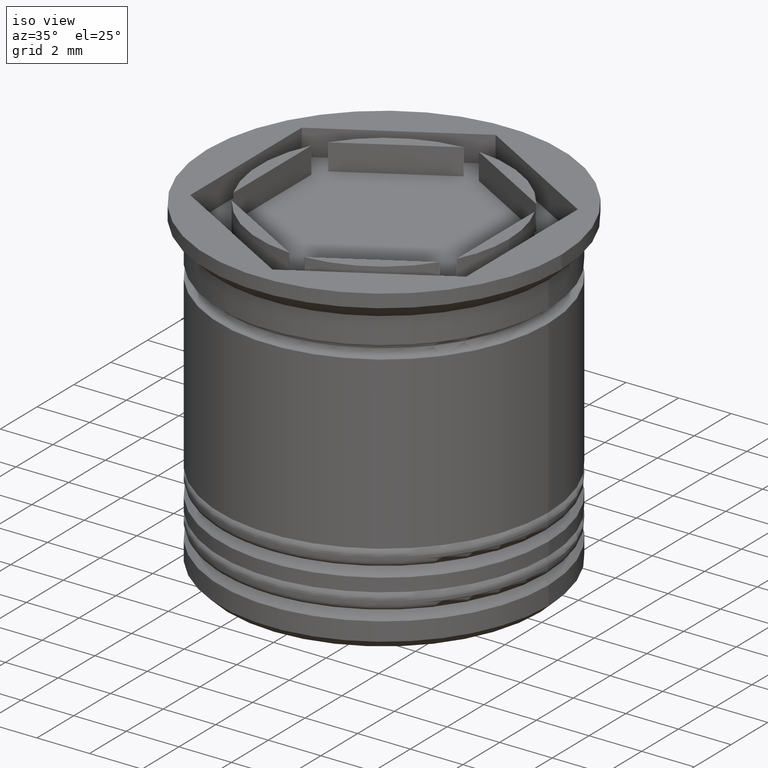
[diagram: clean part render]
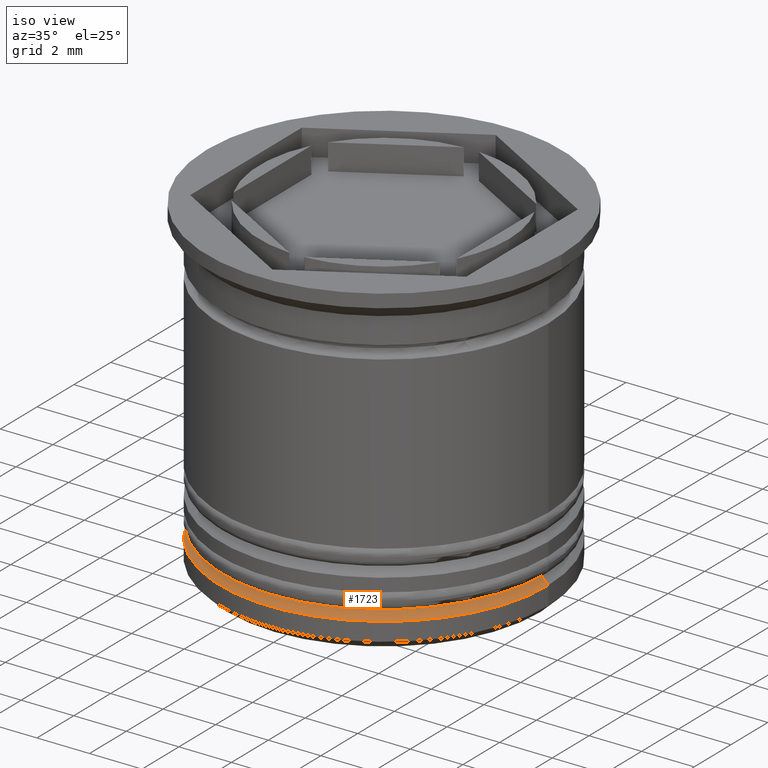
[diagram: same view with one face highlighted and labeled with its STEP entity id]
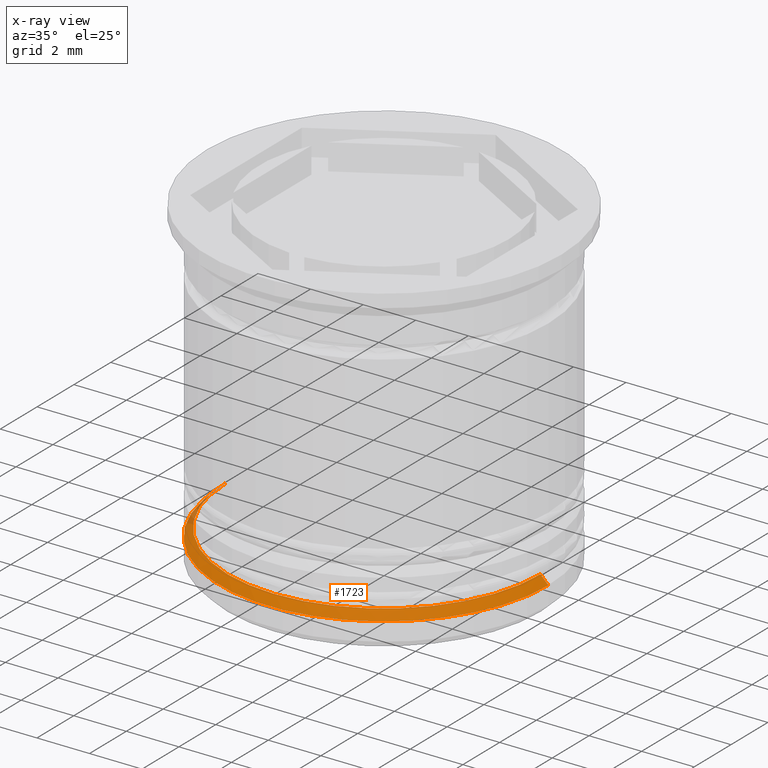
[diagram: x-ray of the same camera — body ghosted, the highlighted face saturated]
A machine part, iso view. The second image highlights one B-rep face of the part: STEP entity #1723.
The next image is the same camera in x-ray: the body ghosted, the highlighted face saturated — about 2% of this face is hidden behind the body in this view.
In plain terms, the highlighted conical surface has half-angle 45 deg.
Its self-contained STEP definition (entity closure, byte-faithful):
#25 = LINE ( 'NONE', #306, #613 ) ;
#48 = AXIS2_PLACEMENT_3D ( 'NONE', #1929, #1003, #1173 ) ;
#109 = FACE_OUTER_BOUND ( 'NONE', #617, .T. ) ;
#167 = ORIENTED_EDGE ( 'NONE', *, *, #1665, .F. ) ;
#208 = ORIENTED_EDGE ( 'NONE', *, *, #408, .F. ) ;
#257 = DIRECTION ( 'NONE',  ( -1.000000000000000000, 0.000000000000000000, 0.000000000000000000 ) ) ;
#306 = CARTESIAN_POINT ( 'NONE',  ( -5.749999999999991118, 0.000000000000000000, -11.00000000000000355 ) ) ;
#408 = EDGE_CURVE ( 'NONE', #816, #1882, #1508, .T. ) ;
#418 = AXIS2_PLACEMENT_3D ( 'NONE', #1655, #575, #443 ) ;
#443 = DIRECTION ( 'NONE',  ( -1.000000000000000000, 0.000000000000000000, 0.000000000000000000 ) ) ;
#461 = LINE ( 'NONE', #757, #1846 ) ;
#536 = VERTEX_POINT ( 'NONE', #943 ) ;
#575 = DIRECTION ( 'NONE',  ( 0.000000000000000000, 0.000000000000000000, -1.000000000000000000 ) ) ;
#613 = VECTOR ( 'NONE', #1210, 1000.000000000000000 ) ;
#617 = EDGE_LOOP ( 'NONE', ( #1146, #167, #1455, #208 ) ) ;
#713 = CIRCLE ( 'NONE', #48, 5.950000000000000178 ) ;
#752 = CONICAL_SURFACE ( 'NONE', #1676, 5.749999999999991118, 0.7853981633974533860 ) ;
#757 = CARTESIAN_POINT ( 'NONE',  ( 5.749999999999991118, 7.041719095097270033E-16, -11.00000000000000355 ) ) ;
#816 = VERTEX_POINT ( 'NONE', #1799 ) ;
#943 = CARTESIAN_POINT ( 'NONE',  ( 5.950000000000000178, 0.000000000000000000, -11.20000000000000995 ) ) ;
#1003 = DIRECTION ( 'NONE',  ( -0.000000000000000000, -0.000000000000000000, 1.000000000000000000 ) ) ;
#1004 = VERTEX_POINT ( 'NONE', #1405 ) ;
#1146 = ORIENTED_EDGE ( 'NONE', *, *, #1424, .F. ) ;
#1163 = DIRECTION ( 'NONE',  ( 0.000000000000000000, 0.000000000000000000, -1.000000000000000000 ) ) ;
#1173 = DIRECTION ( 'NONE',  ( -1.000000000000000000, 0.000000000000000000, 0.000000000000000000 ) ) ;
#1210 = DIRECTION ( 'NONE',  ( -0.7071067811865512365, 0.000000000000000000, -0.7071067811865439090 ) ) ;
#1320 = CARTESIAN_POINT ( 'NONE',  ( 0.000000000000000000, 0.000000000000000000, -11.00000000000000355 ) ) ;
#1346 = CARTESIAN_POINT ( 'NONE',  ( -6.250000000000000000, 7.654042494670957606E-16, -11.50000000000000711 ) ) ;
#1356 = EDGE_CURVE ( 'NONE', #1004, #1882, #25, .T. ) ;
#1359 = DIRECTION ( 'NONE',  ( 0.7071067811865512365, 8.659560562354978464E-17, -0.7071067811865439090 ) ) ;
#1405 = CARTESIAN_POINT ( 'NONE',  ( -5.950000000000000178, 7.286648454926751965E-16, -11.20000000000000995 ) ) ;
#1424 = EDGE_CURVE ( 'NONE', #536, #816, #461, .T. ) ;
#1455 = ORIENTED_EDGE ( 'NONE', *, *, #1356, .T. ) ;
#1508 = CIRCLE ( 'NONE', #418, 6.250000000000000000 ) ;
#1655 = CARTESIAN_POINT ( 'NONE',  ( 0.000000000000000000, 0.000000000000000000, -11.50000000000000711 ) ) ;
#1665 = EDGE_CURVE ( 'NONE', #1004, #536, #713, .T. ) ;
#1676 = AXIS2_PLACEMENT_3D ( 'NONE', #1320, #1163, #257 ) ;
#1723 = ADVANCED_FACE ( 'NONE', ( #109 ), #752, .T. ) ;
#1799 = CARTESIAN_POINT ( 'NONE',  ( 6.250000000000000000, 0.000000000000000000, -11.50000000000000711 ) ) ;
#1846 = VECTOR ( 'NONE', #1359, 1000.000000000000000 ) ;
#1882 = VERTEX_POINT ( 'NONE', #1346 ) ;
#1929 = CARTESIAN_POINT ( 'NONE',  ( 0.000000000000000000, 0.000000000000000000, -11.20000000000000995 ) ) ;